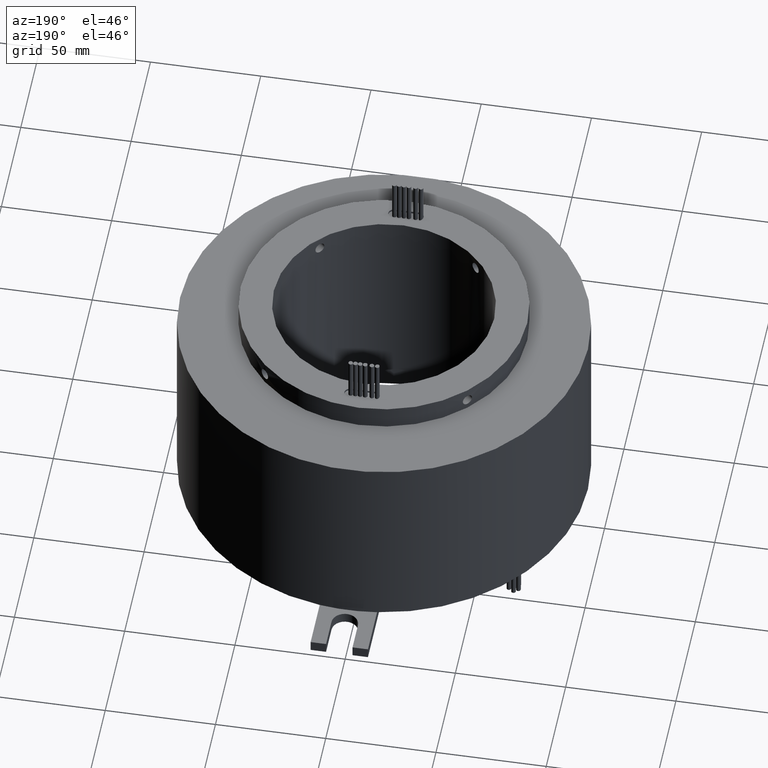
[diagram: clean part render]
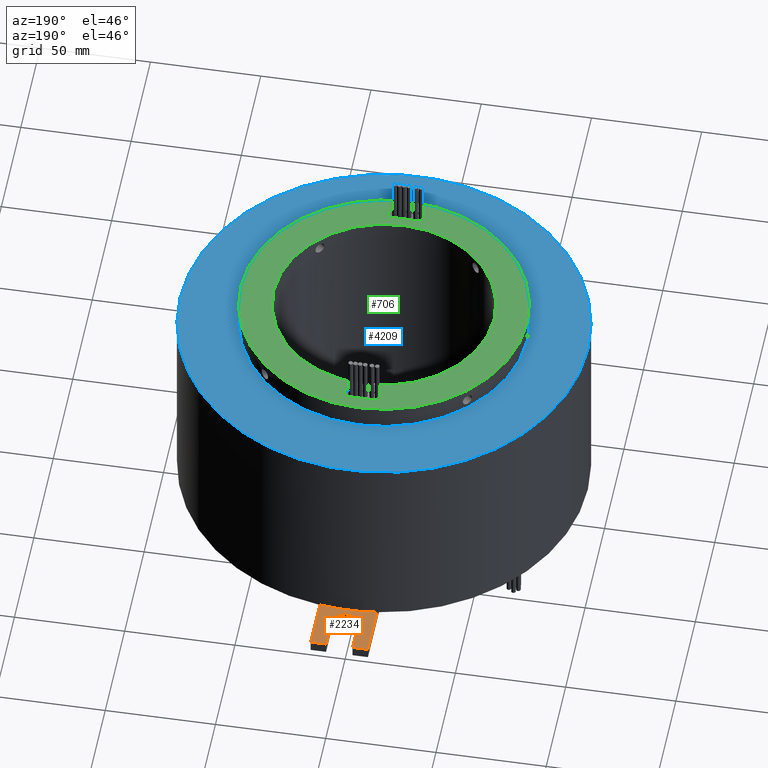
[diagram: same view with three faces highlighted in distinct colors, each labeled with its STEP entity id]
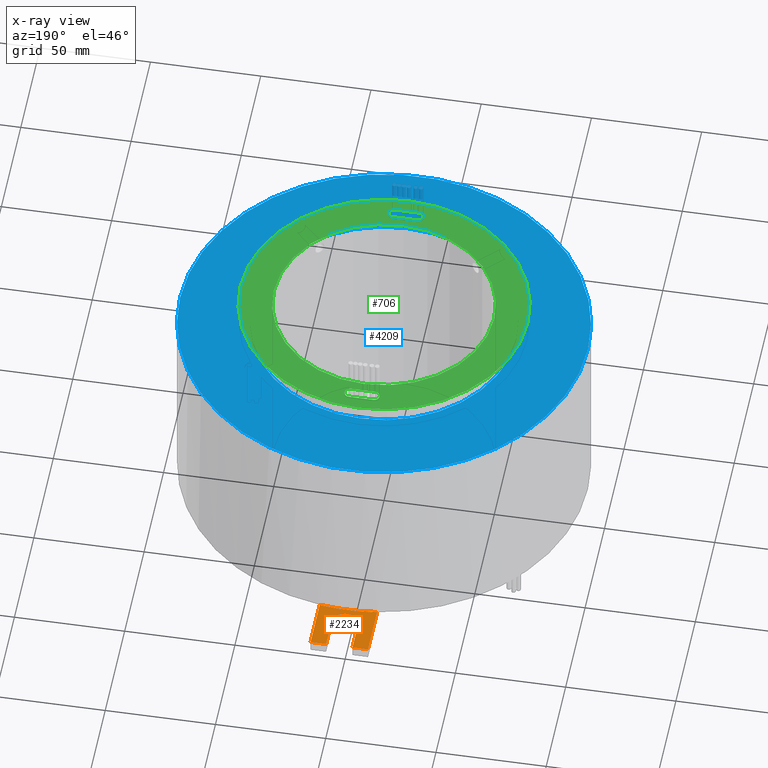
[diagram: x-ray of the same camera — body ghosted, the three highlighted faces saturated]
A machine part, auxiliary view with three faces highlighted in distinct colors.
The next image is the same camera in x-ray (body ghosted, the three faces saturated) — at least one of them is partly hidden behind the body in this view.
Their STEP definitions:

[orange] entity #2234 — the highlighted planar face has unit normal (0, 0, -1).
#19 = FACE_OUTER_BOUND ( 'NONE', #4929, .T. ) ;
#44 = DIRECTION ( 'NONE',  ( 0.0000000000000000000, 0.0000000000000000000, -1.000000000000000000 ) ) ;
#92 = EDGE_CURVE ( 'NONE', #2635, #4523, #3536, .T. ) ;
#154 = DIRECTION ( 'NONE',  ( 1.000000000000000000, 1.982541115402066100E-015, -0.0000000000000000000 ) ) ;
#374 = AXIS2_PLACEMENT_3D ( 'NONE', #1604, #4357, #1980 ) ;
#470 = DIRECTION ( 'NONE',  ( -0.0000000000000000000, -1.000000000000000000, -0.0000000000000000000 ) ) ;
#485 = DIRECTION ( 'NONE',  ( 8.673617379884036700E-017, 1.000000000000000000, -0.0000000000000000000 ) ) ;
#493 = CARTESIAN_POINT ( 'NONE',  ( 6.000000000000000000, 101.0000000000000000, -102.0000000000000100 ) ) ;
#524 = LINE ( 'NONE', #2089, #2598 ) ;
#617 = CARTESIAN_POINT ( 'NONE',  ( 6.000000000000000000, 101.0000000000000000, -102.0000000000000100 ) ) ;
#770 = LINE ( 'NONE', #4038, #2729 ) ;
#779 = VECTOR ( 'NONE', #470, 1000.000000000000000 ) ;
#831 = ORIENTED_EDGE ( 'NONE', *, *, #852, .F. ) ;
#852 = EDGE_CURVE ( 'NONE', #1448, #3614, #2495, .T. ) ;
#1024 = VECTOR ( 'NONE', #1896, 1000.000000000000000 ) ;
#1178 = ORIENTED_EDGE ( 'NONE', *, *, #2042, .F. ) ;
#1235 = CARTESIAN_POINT ( 'NONE',  ( 0.0000000000000000000, 101.0000000000000000, -102.0000000000000100 ) ) ;
#1305 = CARTESIAN_POINT ( 'NONE',  ( 0.0000000000000000000, 101.0000000000000000, -102.0000000000000100 ) ) ;
#1315 = EDGE_CURVE ( 'NONE', #4427, #5074, #4966, .T. ) ;
#1362 = EDGE_CURVE ( 'NONE', #5074, #2635, #1706, .T. ) ;
#1417 = CARTESIAN_POINT ( 'NONE',  ( 13.00000000000000000, 91.58193053217431200, -102.0000000000000100 ) ) ;
#1448 = VERTEX_POINT ( 'NONE', #1417 ) ;
#1474 = AXIS2_PLACEMENT_3D ( 'NONE', #1235, #44, #2801 ) ;
#1560 = CARTESIAN_POINT ( 'NONE',  ( 13.00000000000000200, 115.0000000000000000, -102.0000000000000100 ) ) ;
#1565 = CARTESIAN_POINT ( 'NONE',  ( -12.99999999999999800, 114.9999999999999900, -102.0000000000000100 ) ) ;
#1604 = CARTESIAN_POINT ( 'NONE',  ( 0.0000000000000000000, 0.0000000000000000000, -102.0000000000000100 ) ) ;
#1706 = CIRCLE ( 'NONE', #4155, 6.000000000000000000 ) ;
#1856 = CARTESIAN_POINT ( 'NONE',  ( 6.000000000000000000, 115.0000000000000000, -102.0000000000000100 ) ) ;
#1896 = DIRECTION ( 'NONE',  ( -8.673617379884034200E-017, -1.000000000000000000, 0.0000000000000000000 ) ) ;
#1898 = ORIENTED_EDGE ( 'NONE', *, *, #3348, .F. ) ;
#1909 = CARTESIAN_POINT ( 'NONE',  ( 13.00000000000000200, 115.0000000000000000, -102.0000000000000100 ) ) ;
#1980 = DIRECTION ( 'NONE',  ( 1.000000000000000000, 0.0000000000000000000, 0.0000000000000000000 ) ) ;
#2022 = CARTESIAN_POINT ( 'NONE',  ( -6.000000000000000000, 101.0000000000000000, -102.0000000000000100 ) ) ;
#2042 = EDGE_CURVE ( 'NONE', #4975, #1448, #4039, .T. ) ;
#2089 = CARTESIAN_POINT ( 'NONE',  ( 13.00000000000000200, 115.0000000000000000, -102.0000000000000100 ) ) ;
#2105 = ORIENTED_EDGE ( 'NONE', *, *, #1362, .F. ) ;
#2234 = ADVANCED_FACE ( 'NONE', ( #19 ), #2401, .F. ) ;
#2401 = PLANE ( 'NONE',  #1474 ) ;
#2460 = VERTEX_POINT ( 'NONE', #1565 ) ;
#2491 = VECTOR ( 'NONE', #3747, 1000.000000000000000 ) ;
#2495 = CIRCLE ( 'NONE', #374, 92.50000000000000000 ) ;
#2539 = CARTESIAN_POINT ( 'NONE',  ( -6.000000000000000000, 115.0000000000000000, -102.0000000000000100 ) ) ;
#2598 = VECTOR ( 'NONE', #4052, 1000.000000000000000 ) ;
#2635 = VERTEX_POINT ( 'NONE', #493 ) ;
#2729 = VECTOR ( 'NONE', #485, 1000.000000000000000 ) ;
#2801 = DIRECTION ( 'NONE',  ( -1.000000000000000000, 0.0000000000000000000, -0.0000000000000000000 ) ) ;
#2922 = ORIENTED_EDGE ( 'NONE', *, *, #3369, .F. ) ;
#3001 = ORIENTED_EDGE ( 'NONE', *, *, #4380, .F. ) ;
#3261 = ORIENTED_EDGE ( 'NONE', *, *, #1315, .F. ) ;
#3266 = VECTOR ( 'NONE', #154, 1000.000000000000000 ) ;
#3348 = EDGE_CURVE ( 'NONE', #3614, #2460, #770, .T. ) ;
#3369 = EDGE_CURVE ( 'NONE', #4523, #4975, #524, .T. ) ;
#3428 = CARTESIAN_POINT ( 'NONE',  ( -13.00000000000000000, 91.58193053217429700, -102.0000000000000100 ) ) ;
#3536 = LINE ( 'NONE', #617, #2491 ) ;
#3614 = VERTEX_POINT ( 'NONE', #3428 ) ;
#3682 = DIRECTION ( 'NONE',  ( -1.000000000000000000, 0.0000000000000000000, 0.0000000000000000000 ) ) ;
#3686 = ORIENTED_EDGE ( 'NONE', *, *, #92, .F. ) ;
#3747 = DIRECTION ( 'NONE',  ( 0.0000000000000000000, 1.000000000000000000, 0.0000000000000000000 ) ) ;
#4038 = CARTESIAN_POINT ( 'NONE',  ( -12.99999999999999800, 114.9999999999999900, -102.0000000000000100 ) ) ;
#4039 = LINE ( 'NONE', #1909, #1024 ) ;
#4052 = DIRECTION ( 'NONE',  ( 1.000000000000000000, -0.0000000000000000000, -0.0000000000000000000 ) ) ;
#4155 = AXIS2_PLACEMENT_3D ( 'NONE', #1305, #4903, #3682 ) ;
#4339 = LINE ( 'NONE', #4880, #3266 ) ;
#4357 = DIRECTION ( 'NONE',  ( -0.0000000000000000000, -0.0000000000000000000, 1.000000000000000000 ) ) ;
#4380 = EDGE_CURVE ( 'NONE', #2460, #4427, #4339, .T. ) ;
#4427 = VERTEX_POINT ( 'NONE', #2539 ) ;
#4523 = VERTEX_POINT ( 'NONE', #1856 ) ;
#4793 = CARTESIAN_POINT ( 'NONE',  ( -6.000000000000000000, 101.0000000000000000, -102.0000000000000100 ) ) ;
#4880 = CARTESIAN_POINT ( 'NONE',  ( -6.000000000000000000, 115.0000000000000000, -102.0000000000000100 ) ) ;
#4903 = DIRECTION ( 'NONE',  ( -0.0000000000000000000, -0.0000000000000000000, 1.000000000000000000 ) ) ;
#4929 = EDGE_LOOP ( 'NONE', ( #1898, #831, #1178, #2922, #3686, #2105, #3261, #3001 ) ) ;
#4966 = LINE ( 'NONE', #4793, #779 ) ;
#4975 = VERTEX_POINT ( 'NONE', #1560 ) ;
#5074 = VERTEX_POINT ( 'NONE', #2022 ) ;

[blue] entity #4209 — the highlighted planar face has unit normal (0, 0, -1).
#196 = EDGE_LOOP ( 'NONE', ( #330, #2725 ) ) ;
#330 = ORIENTED_EDGE ( 'NONE', *, *, #4313, .F. ) ;
#406 = CARTESIAN_POINT ( 'NONE',  ( -92.50000000000000000, 1.132798289211301700E-014, -12.00000000000000400 ) ) ;
#420 = CIRCLE ( 'NONE', #3178, 60.00000000000000000 ) ;
#437 = ORIENTED_EDGE ( 'NONE', *, *, #1622, .T. ) ;
#457 = CIRCLE ( 'NONE', #4776, 92.50000000000000000 ) ;
#551 = CARTESIAN_POINT ( 'NONE',  ( 0.0000000000000000000, 0.0000000000000000000, -12.00000000000000400 ) ) ;
#602 = CARTESIAN_POINT ( 'NONE',  ( 0.0000000000000000000, 0.0000000000000000000, -12.00000000000000400 ) ) ;
#609 = VERTEX_POINT ( 'NONE', #3047 ) ;
#935 = DIRECTION ( 'NONE',  ( 1.000000000000000000, 0.0000000000000000000, 0.0000000000000000000 ) ) ;
#991 = DIRECTION ( 'NONE',  ( 1.000000000000000000, 0.0000000000000000000, 0.0000000000000000000 ) ) ;
#1127 = DIRECTION ( 'NONE',  ( -0.0000000000000000000, -0.0000000000000000000, 1.000000000000000000 ) ) ;
#1324 = VERTEX_POINT ( 'NONE', #4412 ) ;
#1351 = AXIS2_PLACEMENT_3D ( 'NONE', #551, #3275, #935 ) ;
#1475 = CARTESIAN_POINT ( 'NONE',  ( 0.0000000000000000000, 60.00000000000000000, -12.00000000000000400 ) ) ;
#1613 = EDGE_CURVE ( 'NONE', #5093, #609, #420, .T. ) ;
#1622 = EDGE_CURVE ( 'NONE', #4625, #1324, #2497, .T. ) ;
#1818 = FACE_OUTER_BOUND ( 'NONE', #4249, .T. ) ;
#1857 = DIRECTION ( 'NONE',  ( 0.0000000000000000000, 0.0000000000000000000, -1.000000000000000000 ) ) ;
#2301 = DIRECTION ( 'NONE',  ( -0.0000000000000000000, -0.0000000000000000000, 1.000000000000000000 ) ) ;
#2497 = CIRCLE ( 'NONE', #3124, 92.50000000000000000 ) ;
#2725 = ORIENTED_EDGE ( 'NONE', *, *, #1613, .F. ) ;
#3047 = CARTESIAN_POINT ( 'NONE',  ( 60.00000000000000000, 0.0000000000000000000, -12.00000000000000400 ) ) ;
#3124 = AXIS2_PLACEMENT_3D ( 'NONE', #4685, #2301, #5064 ) ;
#3156 = ORIENTED_EDGE ( 'NONE', *, *, #4112, .T. ) ;
#3174 = CARTESIAN_POINT ( 'NONE',  ( -60.00000000000000000, 7.347880794884118400E-015, -12.00000000000000400 ) ) ;
#3178 = AXIS2_PLACEMENT_3D ( 'NONE', #3468, #1127, #3875 ) ;
#3275 = DIRECTION ( 'NONE',  ( -0.0000000000000000000, -0.0000000000000000000, 1.000000000000000000 ) ) ;
#3326 = DIRECTION ( 'NONE',  ( -0.0000000000000000000, -0.0000000000000000000, 1.000000000000000000 ) ) ;
#3468 = CARTESIAN_POINT ( 'NONE',  ( 0.0000000000000000000, 0.0000000000000000000, -12.00000000000000400 ) ) ;
#3522 = CIRCLE ( 'NONE', #1351, 60.00000000000000000 ) ;
#3801 = PLANE ( 'NONE',  #4578 ) ;
#3875 = DIRECTION ( 'NONE',  ( 1.000000000000000000, 0.0000000000000000000, 0.0000000000000000000 ) ) ;
#4112 = EDGE_CURVE ( 'NONE', #1324, #4625, #457, .T. ) ;
#4209 = ADVANCED_FACE ( 'NONE', ( #4830, #1818 ), #3801, .F. ) ;
#4249 = EDGE_LOOP ( 'NONE', ( #3156, #437 ) ) ;
#4313 = EDGE_CURVE ( 'NONE', #609, #5093, #3522, .T. ) ;
#4412 = CARTESIAN_POINT ( 'NONE',  ( 92.50000000000000000, 0.0000000000000000000, -12.00000000000000400 ) ) ;
#4578 = AXIS2_PLACEMENT_3D ( 'NONE', #1475, #1857, #4615 ) ;
#4615 = DIRECTION ( 'NONE',  ( -1.000000000000000000, 0.0000000000000000000, -0.0000000000000000000 ) ) ;
#4625 = VERTEX_POINT ( 'NONE', #406 ) ;
#4685 = CARTESIAN_POINT ( 'NONE',  ( 0.0000000000000000000, 0.0000000000000000000, -12.00000000000000400 ) ) ;
#4776 = AXIS2_PLACEMENT_3D ( 'NONE', #602, #3326, #991 ) ;
#4830 = FACE_BOUND ( 'NONE', #196, .T. ) ;
#5064 = DIRECTION ( 'NONE',  ( 1.000000000000000000, 0.0000000000000000000, 0.0000000000000000000 ) ) ;
#5093 = VERTEX_POINT ( 'NONE', #3174 ) ;

[green] entity #706 — the highlighted planar face has unit normal (0, 0, -1).
#17 = DIRECTION ( 'NONE',  ( 1.000000000000000000, 0.0000000000000000000, 0.0000000000000000000 ) ) ;
#57 = DIRECTION ( 'NONE',  ( -1.000000000000000000, -0.0000000000000000000, -0.0000000000000000000 ) ) ;
#120 = EDGE_CURVE ( 'NONE', #1282, #985, #4476, .T. ) ;
#131 = DIRECTION ( 'NONE',  ( 1.000000000000000000, 0.0000000000000000000, 0.0000000000000000000 ) ) ;
#181 = CARTESIAN_POINT ( 'NONE',  ( -65.00000000000000000, 7.960204194457797300E-015, 0.0000000000000000000 ) ) ;
#189 = DIRECTION ( 'NONE',  ( -1.000000000000000000, 0.0000000000000000000, 0.0000000000000000000 ) ) ;
#218 = FACE_BOUND ( 'NONE', #4963, .T. ) ;
#256 = VECTOR ( 'NONE', #4238, 1000.000000000000000 ) ;
#300 = AXIS2_PLACEMENT_3D ( 'NONE', #4754, #2382, #17 ) ;
#328 = VERTEX_POINT ( 'NONE', #773 ) ;
#387 = CARTESIAN_POINT ( 'NONE',  ( 0.0000000000000000000, 0.0000000000000000000, 0.0000000000000000000 ) ) ;
#489 = EDGE_CURVE ( 'NONE', #4988, #3061, #4961, .T. ) ;
#548 = VERTEX_POINT ( 'NONE', #1429 ) ;
#562 = VERTEX_POINT ( 'NONE', #3416 ) ;
#640 = DIRECTION ( 'NONE',  ( 0.0000000000000000000, 0.0000000000000000000, 1.000000000000000000 ) ) ;
#667 = DIRECTION ( 'NONE',  ( 1.000000000000000000, 0.0000000000000000000, 0.0000000000000000000 ) ) ;
#706 = ADVANCED_FACE ( 'NONE', ( #5023, #3224, #218, #2193 ), #3117, .F. ) ;
#709 = VERTEX_POINT ( 'NONE', #4705 ) ;
#773 = CARTESIAN_POINT ( 'NONE',  ( 8.000000000000001800, 56.49999999999999300, 0.0000000000000000000 ) ) ;
#778 = CARTESIAN_POINT ( 'NONE',  ( -50.00000000000000000, 6.123233995736766100E-015, 0.0000000000000000000 ) ) ;
#784 = CARTESIAN_POINT ( 'NONE',  ( 5.500000000000006200, 59.00000000000000000, 0.0000000000000000000 ) ) ;
#965 = AXIS2_PLACEMENT_3D ( 'NONE', #387, #3924, #1576 ) ;
#985 = VERTEX_POINT ( 'NONE', #3704 ) ;
#1032 = EDGE_CURVE ( 'NONE', #709, #4118, #1892, .T. ) ;
#1056 = CARTESIAN_POINT ( 'NONE',  ( 5.500000000000006200, -56.49999999999999300, 0.0000000000000000000 ) ) ;
#1058 = EDGE_CURVE ( 'NONE', #1655, #709, #3853, .T. ) ;
#1097 = ORIENTED_EDGE ( 'NONE', *, *, #1032, .F. ) ;
#1147 = AXIS2_PLACEMENT_3D ( 'NONE', #4870, #2501, #131 ) ;
#1282 = VERTEX_POINT ( 'NONE', #784 ) ;
#1411 = CARTESIAN_POINT ( 'NONE',  ( 65.00000000000000000, 0.0000000000000000000, 0.0000000000000000000 ) ) ;
#1429 = CARTESIAN_POINT ( 'NONE',  ( -5.499999999999992900, -54.00000000000000000, 0.0000000000000000000 ) ) ;
#1447 = CARTESIAN_POINT ( 'NONE',  ( 0.0000000000000000000, 0.0000000000000000000, 0.0000000000000000000 ) ) ;
#1466 = DIRECTION ( 'NONE',  ( 1.000000000000000000, 0.0000000000000000000, 0.0000000000000000000 ) ) ;
#1493 = EDGE_CURVE ( 'NONE', #3061, #4988, #3964, .T. ) ;
#1567 = DIRECTION ( 'NONE',  ( 0.0000000000000000000, 0.0000000000000000000, 1.000000000000000000 ) ) ;
#1576 = DIRECTION ( 'NONE',  ( -1.000000000000000000, 0.0000000000000000000, -0.0000000000000000000 ) ) ;
#1655 = VERTEX_POINT ( 'NONE', #3083 ) ;
#1724 = DIRECTION ( 'NONE',  ( -0.0000000000000000000, -0.0000000000000000000, 1.000000000000000000 ) ) ;
#1755 = VECTOR ( 'NONE', #667, 1000.000000000000000 ) ;
#1767 = DIRECTION ( 'NONE',  ( 0.0000000000000000000, 0.0000000000000000000, 1.000000000000000000 ) ) ;
#1778 = EDGE_CURVE ( 'NONE', #4118, #548, #4913, .T. ) ;
#1819 = CARTESIAN_POINT ( 'NONE',  ( 5.500000000000006200, -56.49999999999999300, 0.0000000000000000000 ) ) ;
#1827 = DIRECTION ( 'NONE',  ( -1.000000000000000000, -0.0000000000000000000, -0.0000000000000000000 ) ) ;
#1839 = DIRECTION ( 'NONE',  ( 1.000000000000000000, 0.0000000000000000000, 0.0000000000000000000 ) ) ;
#1879 = CARTESIAN_POINT ( 'NONE',  ( -5.499999999999992900, 54.00000000000000700, 0.0000000000000000000 ) ) ;
#1892 = CIRCLE ( 'NONE', #5091, 2.499999999999995100 ) ;
#1893 = EDGE_CURVE ( 'NONE', #2333, #328, #4296, .T. ) ;
#1897 = VECTOR ( 'NONE', #57, 1000.000000000000000 ) ;
#1915 = VERTEX_POINT ( 'NONE', #1411 ) ;
#2143 = EDGE_CURVE ( 'NONE', #328, #1282, #2741, .T. ) ;
#2149 = AXIS2_PLACEMENT_3D ( 'NONE', #3915, #1567, #4319 ) ;
#2190 = CARTESIAN_POINT ( 'NONE',  ( -5.499999999999992900, 59.00000000000000000, 0.0000000000000000000 ) ) ;
#2193 = FACE_OUTER_BOUND ( 'NONE', #2322, .T. ) ;
#2203 = DIRECTION ( 'NONE',  ( 1.000000000000000000, 0.0000000000000000000, 0.0000000000000000000 ) ) ;
#2233 = AXIS2_PLACEMENT_3D ( 'NONE', #2985, #640, #3376 ) ;
#2322 = EDGE_LOOP ( 'NONE', ( #4895, #3372 ) ) ;
#2333 = VERTEX_POINT ( 'NONE', #5024 ) ;
#2344 = ORIENTED_EDGE ( 'NONE', *, *, #4741, .F. ) ;
#2351 = ORIENTED_EDGE ( 'NONE', *, *, #120, .F. ) ;
#2382 = DIRECTION ( 'NONE',  ( 0.0000000000000000000, 0.0000000000000000000, 1.000000000000000000 ) ) ;
#2501 = DIRECTION ( 'NONE',  ( -0.0000000000000000000, -0.0000000000000000000, 1.000000000000000000 ) ) ;
#2530 = AXIS2_PLACEMENT_3D ( 'NONE', #4925, #2556, #189 ) ;
#2543 = CARTESIAN_POINT ( 'NONE',  ( 5.500000000000006200, -54.00000000000000700, 0.0000000000000000000 ) ) ;
#2556 = DIRECTION ( 'NONE',  ( 0.0000000000000000000, 0.0000000000000000000, 1.000000000000000000 ) ) ;
#2649 = EDGE_CURVE ( 'NONE', #985, #3807, #2973, .T. ) ;
#2741 = CIRCLE ( 'NONE', #2149, 2.499999999999995100 ) ;
#2777 = LINE ( 'NONE', #4198, #1755 ) ;
#2794 = ORIENTED_EDGE ( 'NONE', *, *, #2143, .F. ) ;
#2799 = ORIENTED_EDGE ( 'NONE', *, *, #489, .F. ) ;
#2973 = CIRCLE ( 'NONE', #300, 2.499999999999995100 ) ;
#2985 = CARTESIAN_POINT ( 'NONE',  ( 0.0000000000000000000, 0.0000000000000000000, 0.0000000000000000000 ) ) ;
#3061 = VERTEX_POINT ( 'NONE', #3076 ) ;
#3076 = CARTESIAN_POINT ( 'NONE',  ( 50.00000000000000000, 0.0000000000000000000, 0.0000000000000000000 ) ) ;
#3083 = CARTESIAN_POINT ( 'NONE',  ( 5.500000000000006200, -59.00000000000000000, 0.0000000000000000000 ) ) ;
#3117 = PLANE ( 'NONE',  #965 ) ;
#3126 = ORIENTED_EDGE ( 'NONE', *, *, #4907, .F. ) ;
#3179 = CARTESIAN_POINT ( 'NONE',  ( -5.499999999999992900, -54.00000000000000700, 0.0000000000000000000 ) ) ;
#3224 = FACE_BOUND ( 'NONE', #4515, .T. ) ;
#3264 = ORIENTED_EDGE ( 'NONE', *, *, #4527, .F. ) ;
#3372 = ORIENTED_EDGE ( 'NONE', *, *, #3384, .T. ) ;
#3376 = DIRECTION ( 'NONE',  ( 1.000000000000000000, 0.0000000000000000000, 0.0000000000000000000 ) ) ;
#3384 = EDGE_CURVE ( 'NONE', #4113, #1915, #3653, .T. ) ;
#3404 = ORIENTED_EDGE ( 'NONE', *, *, #2649, .F. ) ;
#3409 = VECTOR ( 'NONE', #1827, 1000.000000000000000 ) ;
#3416 = CARTESIAN_POINT ( 'NONE',  ( -5.499999999999992900, -59.00000000000000000, 0.0000000000000000000 ) ) ;
#3516 = LINE ( 'NONE', #1879, #256 ) ;
#3519 = AXIS2_PLACEMENT_3D ( 'NONE', #1447, #4183, #1839 ) ;
#3564 = AXIS2_PLACEMENT_3D ( 'NONE', #4111, #1767, #4513 ) ;
#3649 = CIRCLE ( 'NONE', #4314, 65.00000000000000000 ) ;
#3653 = CIRCLE ( 'NONE', #1147, 65.00000000000000000 ) ;
#3704 = CARTESIAN_POINT ( 'NONE',  ( -5.499999999999992900, 59.00000000000000000, 0.0000000000000000000 ) ) ;
#3797 = DIRECTION ( 'NONE',  ( 0.0000000000000000000, 0.0000000000000000000, 1.000000000000000000 ) ) ;
#3807 = VERTEX_POINT ( 'NONE', #4764 ) ;
#3853 = CIRCLE ( 'NONE', #4893, 2.499999999999995100 ) ;
#3915 = CARTESIAN_POINT ( 'NONE',  ( 5.500000000000006200, 56.49999999999999300, 0.0000000000000000000 ) ) ;
#3924 = DIRECTION ( 'NONE',  ( 0.0000000000000000000, 0.0000000000000000000, -1.000000000000000000 ) ) ;
#3964 = CIRCLE ( 'NONE', #3519, 50.00000000000000000 ) ;
#4063 = CARTESIAN_POINT ( 'NONE',  ( 0.0000000000000000000, 0.0000000000000000000, 0.0000000000000000000 ) ) ;
#4111 = CARTESIAN_POINT ( 'NONE',  ( -5.499999999999992900, -56.49999999999999300, 0.0000000000000000000 ) ) ;
#4113 = VERTEX_POINT ( 'NONE', #181 ) ;
#4118 = VERTEX_POINT ( 'NONE', #2543 ) ;
#4125 = ORIENTED_EDGE ( 'NONE', *, *, #1893, .F. ) ;
#4179 = ORIENTED_EDGE ( 'NONE', *, *, #1778, .F. ) ;
#4183 = DIRECTION ( 'NONE',  ( 0.0000000000000000000, 0.0000000000000000000, 1.000000000000000000 ) ) ;
#4198 = CARTESIAN_POINT ( 'NONE',  ( -5.499999999999992900, -59.00000000000000000, 0.0000000000000000000 ) ) ;
#4238 = DIRECTION ( 'NONE',  ( 1.000000000000000000, 0.0000000000000000000, 0.0000000000000000000 ) ) ;
#4287 = EDGE_CURVE ( 'NONE', #1915, #4113, #3649, .T. ) ;
#4296 = CIRCLE ( 'NONE', #2530, 2.499999999999995100 ) ;
#4314 = AXIS2_PLACEMENT_3D ( 'NONE', #4063, #1724, #4473 ) ;
#4319 = DIRECTION ( 'NONE',  ( -1.000000000000000000, 0.0000000000000000000, 0.0000000000000000000 ) ) ;
#4473 = DIRECTION ( 'NONE',  ( 1.000000000000000000, 0.0000000000000000000, 0.0000000000000000000 ) ) ;
#4476 = LINE ( 'NONE', #2190, #3409 ) ;
#4483 = ORIENTED_EDGE ( 'NONE', *, *, #1493, .F. ) ;
#4513 = DIRECTION ( 'NONE',  ( -1.000000000000000000, 0.0000000000000000000, 0.0000000000000000000 ) ) ;
#4515 = EDGE_LOOP ( 'NONE', ( #3126, #3404, #2351, #2794, #4125 ) ) ;
#4527 = EDGE_CURVE ( 'NONE', #562, #1655, #2777, .T. ) ;
#4568 = DIRECTION ( 'NONE',  ( 0.0000000000000000000, 0.0000000000000000000, 1.000000000000000000 ) ) ;
#4705 = CARTESIAN_POINT ( 'NONE',  ( 8.000000000000001800, -56.49999999999999300, 0.0000000000000000000 ) ) ;
#4741 = EDGE_CURVE ( 'NONE', #548, #562, #4825, .T. ) ;
#4754 = CARTESIAN_POINT ( 'NONE',  ( -5.499999999999992900, 56.49999999999999300, 0.0000000000000000000 ) ) ;
#4764 = CARTESIAN_POINT ( 'NONE',  ( -5.499999999999992900, 54.00000000000000700, 0.0000000000000000000 ) ) ;
#4825 = CIRCLE ( 'NONE', #3564, 2.499999999999995100 ) ;
#4867 = ORIENTED_EDGE ( 'NONE', *, *, #1058, .F. ) ;
#4870 = CARTESIAN_POINT ( 'NONE',  ( 0.0000000000000000000, 0.0000000000000000000, 0.0000000000000000000 ) ) ;
#4893 = AXIS2_PLACEMENT_3D ( 'NONE', #1056, #3797, #1466 ) ;
#4895 = ORIENTED_EDGE ( 'NONE', *, *, #4287, .T. ) ;
#4907 = EDGE_CURVE ( 'NONE', #3807, #2333, #3516, .T. ) ;
#4913 = LINE ( 'NONE', #3179, #1897 ) ;
#4925 = CARTESIAN_POINT ( 'NONE',  ( 5.500000000000006200, 56.49999999999999300, 0.0000000000000000000 ) ) ;
#4961 = CIRCLE ( 'NONE', #2233, 50.00000000000000000 ) ;
#4963 = EDGE_LOOP ( 'NONE', ( #4483, #2799 ) ) ;
#4988 = VERTEX_POINT ( 'NONE', #778 ) ;
#5023 = FACE_BOUND ( 'NONE', #5116, .T. ) ;
#5024 = CARTESIAN_POINT ( 'NONE',  ( 5.500000000000007100, 54.00000000000000000, 0.0000000000000000000 ) ) ;
#5091 = AXIS2_PLACEMENT_3D ( 'NONE', #1819, #4568, #2203 ) ;
#5116 = EDGE_LOOP ( 'NONE', ( #4179, #1097, #4867, #3264, #2344 ) ) ;